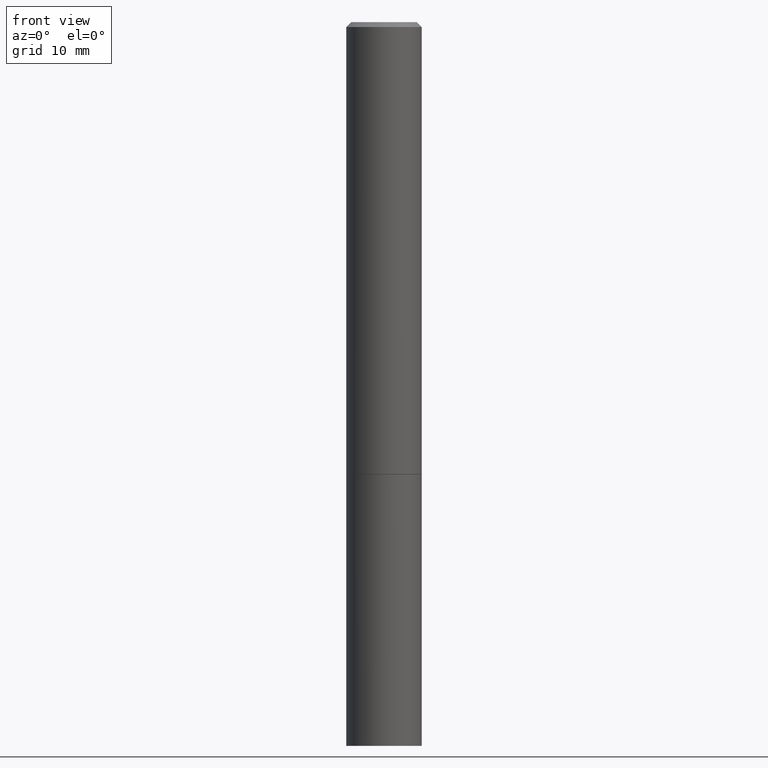
[diagram: clean part render]
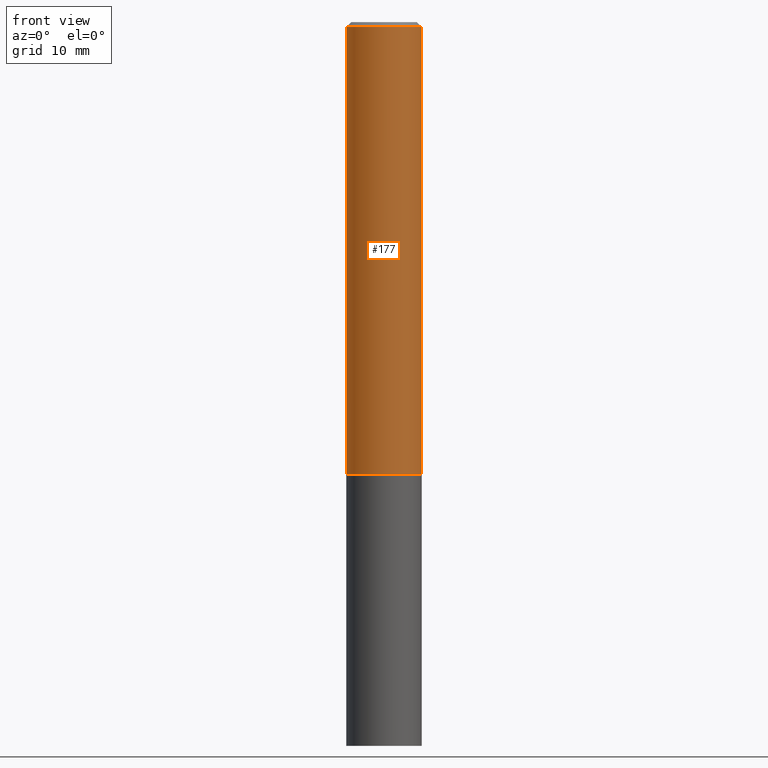
[diagram: same view with one face highlighted and labeled with its STEP entity id]
A machine part, front view. The second image highlights one B-rep face of the part: STEP entity #177.
In plain terms, the highlighted cylindrical surface (partial cylindrical patch) has radius 3.9687 mm, axis along (-0, 0, 1).
Its self-contained STEP definition (entity closure, byte-faithful):
#13 = VERTEX_POINT ( 'NONE', #81 ) ;
#20 = ORIENTED_EDGE ( 'NONE', *, *, #236, .F. ) ;
#23 = CYLINDRICAL_SURFACE ( 'NONE', #61, 0.1562499999999999167 ) ;
#31 = CARTESIAN_POINT ( 'NONE',  ( 0.1562499999999999167, -1.091087918388478385E-15, 7.619026212181144772E-30 ) ) ;
#52 = VERTEX_POINT ( 'NONE', #82 ) ;
#58 = FACE_OUTER_BOUND ( 'NONE', #190, .T. ) ;
#61 = AXIS2_PLACEMENT_3D ( 'NONE', #117, #180, #183 ) ;
#81 = CARTESIAN_POINT ( 'NONE',  ( -0.1562499999999998057, 1.021258291611614692E-15, -0.02000000000000003511 ) ) ;
#82 = CARTESIAN_POINT ( 'NONE',  ( 0.1562499999999998057, -1.141782438928663330E-15, -0.02000000000000003511 ) ) ;
#102 = LINE ( 'NONE', #31, #187 ) ;
#117 = CARTESIAN_POINT ( 'NONE',  ( 0.000000000000000000, 0.000000000000000000, 0.000000000000000000 ) ) ;
#122 = CARTESIAN_POINT ( 'NONE',  ( -0.1562500000000000000, -2.196209803259300198E-15, -1.874000000000000110 ) ) ;
#127 = AXIS2_PLACEMENT_3D ( 'NONE', #264, #146, #350 ) ;
#146 = DIRECTION ( 'NONE',  ( -2.445468806185136597E-29, 3.491481338843145583E-15, 1.000000000000000000 ) ) ;
#154 = VECTOR ( 'NONE', #254, 39.37007874015748143 ) ;
#163 = AXIS2_PLACEMENT_3D ( 'NONE', #224, #365, #278 ) ;
#174 = VERTEX_POINT ( 'NONE', #122 ) ;
#177 = ADVANCED_FACE ( 'NONE', ( #58 ), #23, .T. ) ;
#180 = DIRECTION ( 'NONE',  ( -2.445468806185136597E-29, 3.491481338843145583E-15, 1.000000000000000000 ) ) ;
#183 = DIRECTION ( 'NONE',  ( 1.000000000000000000, -6.982962677686265133E-15, 4.876176775795935232E-29 ) ) ;
#185 = DIRECTION ( 'NONE',  ( -2.445468806185136877E-29, 3.491481338843145188E-15, 1.000000000000000000 ) ) ;
#187 = VECTOR ( 'NONE', #185, 39.37007874015748143 ) ;
#190 = EDGE_LOOP ( 'NONE', ( #279, #275, #349, #20 ) ) ;
#217 = CIRCLE ( 'NONE', #127, 0.1562499999999998057 ) ;
#224 = CARTESIAN_POINT ( 'NONE',  ( 4.582808542790945516E-29, -6.543036028992054911E-15, -1.874000000000000110 ) ) ;
#236 = EDGE_CURVE ( 'NONE', #13, #52, #217, .T. ) ;
#251 = CARTESIAN_POINT ( 'NONE',  ( -0.1562499999999999167, 1.110223024625155949E-15, -7.685836078523285555E-30 ) ) ;
#254 = DIRECTION ( 'NONE',  ( -2.445468806185136877E-29, 3.491481338843145188E-15, 1.000000000000000000 ) ) ;
#264 = CARTESIAN_POINT ( 'NONE',  ( 4.890937612370281041E-31, -6.982962677686302702E-17, -0.02000000000000003511 ) ) ;
#271 = CARTESIAN_POINT ( 'NONE',  ( 0.1562500000000000000, -7.634123947380534085E-15, -1.874000000000000110 ) ) ;
#275 = ORIENTED_EDGE ( 'NONE', *, *, #298, .T. ) ;
#278 = DIRECTION ( 'NONE',  ( 1.000000000000000000, -6.982962677686269077E-15, 0.000000000000000000 ) ) ;
#279 = ORIENTED_EDGE ( 'NONE', *, *, #287, .F. ) ;
#287 = EDGE_CURVE ( 'NONE', #174, #13, #300, .T. ) ;
#295 = EDGE_CURVE ( 'NONE', #304, #52, #102, .T. ) ;
#298 = EDGE_CURVE ( 'NONE', #174, #304, #362, .T. ) ;
#300 = LINE ( 'NONE', #251, #154 ) ;
#304 = VERTEX_POINT ( 'NONE', #271 ) ;
#349 = ORIENTED_EDGE ( 'NONE', *, *, #295, .T. ) ;
#350 = DIRECTION ( 'NONE',  ( 1.000000000000000000, -6.982962677686265133E-15, 0.000000000000000000 ) ) ;
#362 = CIRCLE ( 'NONE', #163, 0.1562500000000000000 ) ;
#365 = DIRECTION ( 'NONE',  ( -2.445468806185136597E-29, 3.491481338843145583E-15, 1.000000000000000000 ) ) ;